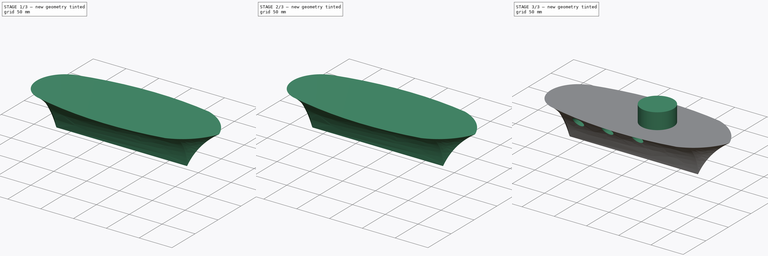
[diagram: build sequence overview — one tinted view per stage of 3, left to right]
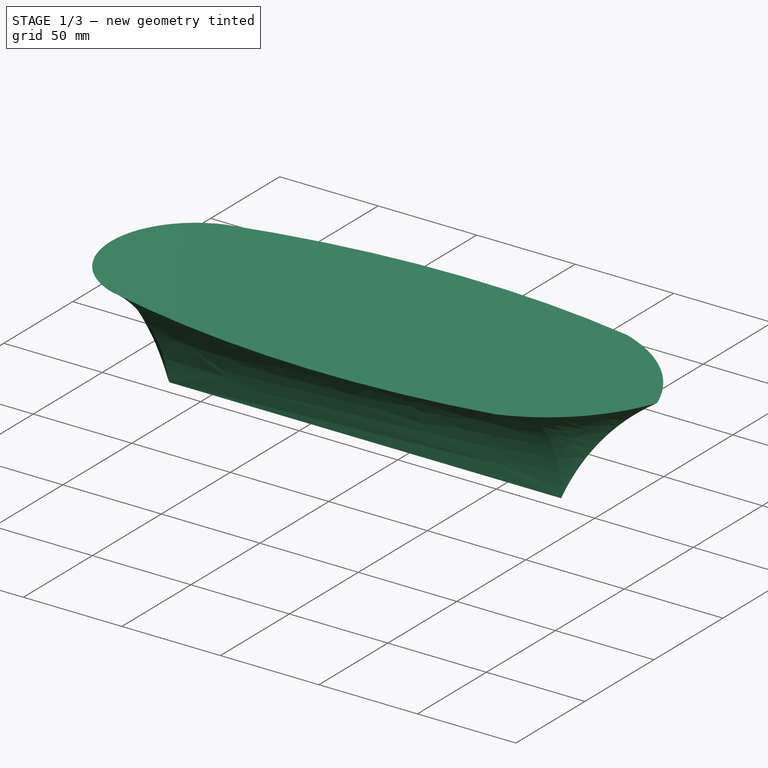
[diagram: stage 1 of 3 — iso view after this stage's code; geometry added in this stage tinted green]
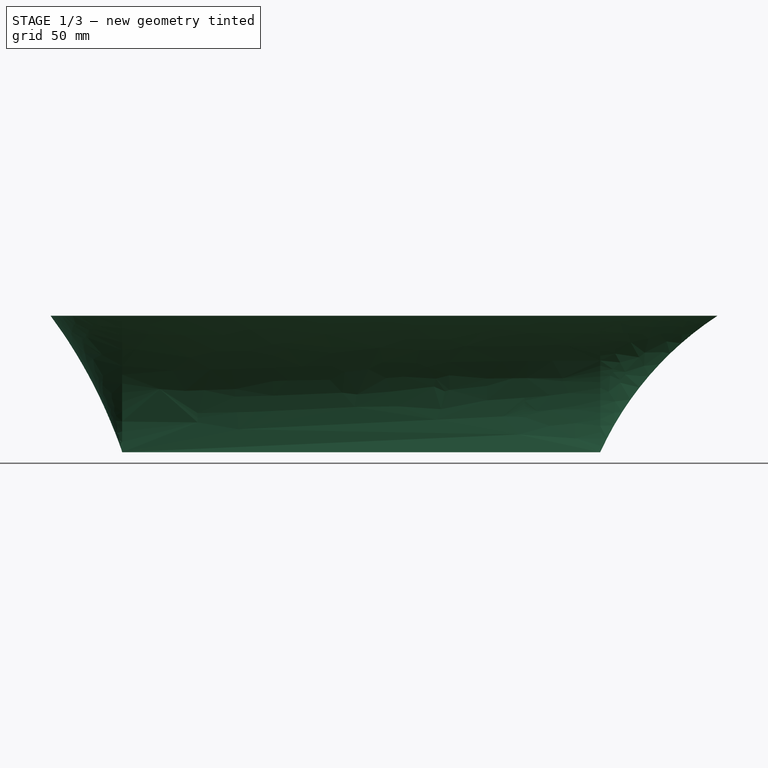
[diagram: stage 1 of 3 — front view after this stage's code; geometry added in this stage tinted green]
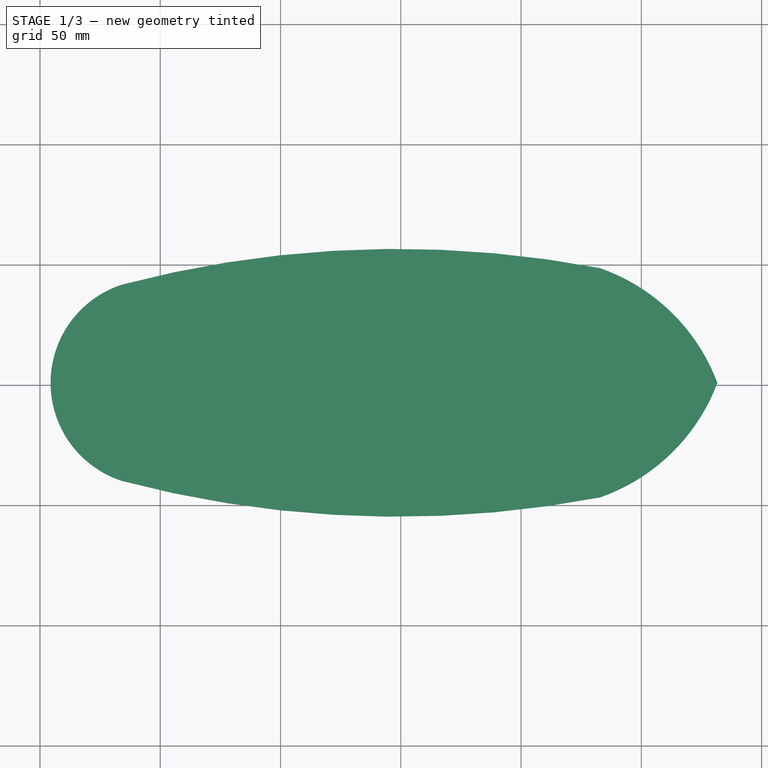
[diagram: stage 1 of 3 — top view after this stage's code; geometry added in this stage tinted green]
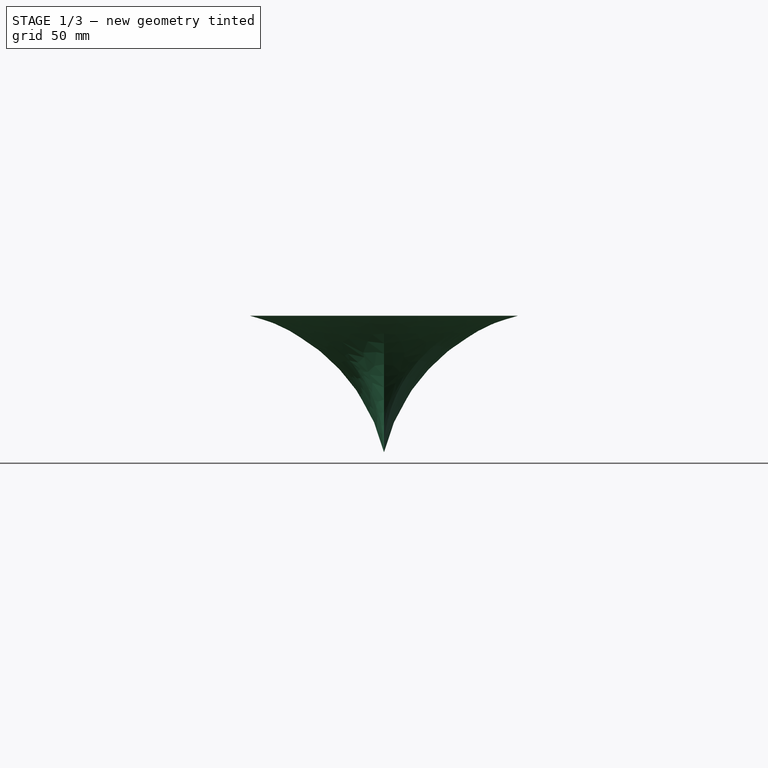
[diagram: stage 1 of 3 — right view after this stage's code; geometry added in this stage tinted green]
FCSTD DOCUMENT  (FreeCAD 0.20R29410 (Git))
Label: ShipSurfaceWB
License: All rights reserved
LicenseURL: http://en.wikipedia.org/wiki/All_rights_reserved
objects: Surface::Filling×8, Sketcher::SketchObject×7, Part::RuledSurface×4, Part::Compound×4, Part::Feature×3, Part::MultiFuse×1, PartDesign::FeatureBase×1, PartDesign::Pad×1, PartDesign::Pocket×1, PartDesign::Body×1
note: 33 computed .brp shape members not serialized (recipe doc carries the construction recipe); baked Part::Feature solids carry a one-line shape summary decoded from their .brp

FEATURE [Sketcher::SketchObject] Sketch
  FullyConstrained = false
  sketch-geometry (8):
    g0: ArcOfCircle CenterX=-52.705 CenterY=-2e-16 CenterZ=0 NormalX=0 NormalY=0 NormalZ=1 AngleXU=0 Radius=42.9169 StartAngle=1.88295 EndAngle=4.40023
    g1: ArcOfCircle CenterX=106.378 CenterY=-28.1949 CenterZ=0 NormalX=0 NormalY=0 NormalZ=1 AngleXU=0 Radius=80.3614 StartAngle=0.35848 EndAngle=1.23443
    g2: ArcOfCircle CenterX=106.378 CenterY=28.1949 CenterZ=0 NormalX=0 NormalY=0 NormalZ=1 AngleXU=0 Radius=80.3614 StartAngle=5.04876 EndAngle=5.92471
    g3: ArcOfCircle CenterX=48.4913 CenterY=-392.457 CenterZ=0 NormalX=0 NormalY=0 NormalZ=1 AngleXU=0 Radius=448.142 StartAngle=1.38131 EndAngle=1.82888
    g4: ArcOfCircle CenterX=48.4913 CenterY=392.457 CenterZ=0 NormalX=0 NormalY=0 NormalZ=1 AngleXU=0 Radius=448.142 StartAngle=4.45431 EndAngle=4.90188
    g5: LineSegment StartX=181.631 StartY=-1.07e-14 StartZ=0 EndX=132.902 EndY=0 EndZ=0
    g6: GeomPoint X=-95.6219 Y=0 Z=0
    g7: LineSegment StartX=-95.6219 StartY=0 StartZ=0 EndX=-65.8852 EndY=0 EndZ=0
  constraints (18):
    c: PointOnObject(g1,g-1)
    c: Coincident(g2,g1)
    c: Symmetric(g2,g1,g-1)
    c: Equal(g2,g1)
    c: Coincident(g3,g0)
    c: Coincident(g3,g1)
    c: Coincident(g4,g0)
    c: Coincident(g4,g2)
    c: Symmetric(g0,g0,g-1)
    c: Symmetric(g4,g3,g-1)
    c: Coincident(g5,g1)
    c: PointOnObject(g5,g-1)
    c: Vertical(g5,g1)
    c: PointOnObject(g6,g0)
    c: PointOnObject(g6,g-1)
    c: Coincident(g7,g6)
    c: PointOnObject(g7,g-1)
    c: Vertical(g7,g0)
FEATURE [Sketcher::SketchObject] Sketch001
  ExternalGeometry = -> [Sketch]
  FullyConstrained = false
  MapMode = 7
  Placement = pos=(132.902,0,0) rot=(0.57735,0.57735,0.57735;2.0944rad)
  Support = -> [Sketch]
  sketch-geometry (2):
    g0: ArcOfCircle CenterX=-57.4799 CenterY=-56.6354 CenterZ=0 NormalX=0 NormalY=0 NormalZ=1 AngleXU=0 Radius=57.48 StartAngle=6.28172 EndAngle=7.68235
    g1: ArcOfCircle CenterX=57.4799 CenterY=-56.6354 CenterZ=0 NormalX=0 NormalY=0 NormalZ=1 AngleXU=0 Radius=57.48 StartAngle=1.74243 EndAngle=3.14306
  constraints (4):
    c: Coincident(g0,g-3)
    c: Coincident(g1,g-4)
    c: Coincident(g1,g0)
    c: Symmetric(g1,g0,g-2)
FEATURE [Sketcher::SketchObject] Sketch002
  ExternalGeometry = -> [Sketch,Sketch001]
  FullyConstrained = false
  Placement = pos=(0,0,0) rot=(1,0,0;1.5708rad)
  sketch-geometry (2):
    g0: ArcOfCircle CenterX=254.978 CenterY=-112.305 CenterZ=0 NormalX=0 NormalY=0 NormalZ=1 AngleXU=0 Radius=134.136 StartAngle=2.14935 EndAngle=2.71431
    g1: LineSegment StartX=132.902 StartY=-56.7198 StartZ=0 EndX=-65.8852 EndY=-56.7198 EndZ=0
  constraints (5):
    c: Coincident(g0,g-4)
    c: Coincident(g0,g-3)
    c: Coincident(g1,g0)
    c: Horizontal(g1)
    c: Vertical(g-5,g1)
FEATURE [Sketcher::SketchObject] Sketch003
  ExternalGeometry = -> [Sketch,Sketch002]
  FullyConstrained = false
  MapMode = 7
  Placement = pos=(-65.8852,0,0) rot=(0.57735,-0.57735,-0.57735;2.0944rad)
  Support = -> [Sketch]
  sketch-geometry (2):
    g0: ArcOfCircle CenterX=-91.7934 CenterY=-79.7535 CenterZ=0 NormalX=0 NormalY=0 NormalZ=1 AngleXU=0 Radius=94.6392 StartAngle=0.245854 EndAngle=1.0023
    g1: ArcOfCircle CenterX=91.7934 CenterY=-79.7535 CenterZ=0 NormalX=0 NormalY=0 NormalZ=1 AngleXU=0 Radius=94.6392 StartAngle=2.13929 EndAngle=2.89574
  constraints (5):
    c: Coincident(g0,g-3)
    c: Coincident(g0,g-5)
    c: Coincident(g1,g-4)
    c: Coincident(g1,g0)
    c: Equal(g0,g1)
FEATURE [Sketcher::SketchObject] Sketch004
  ExternalGeometry = -> [Sketch,Sketch003]
  FullyConstrained = false
  Placement = pos=(0,0,0) rot=(1,0,0;1.5708rad)
  sketch-geometry (1):
    g0: ArcOfCircle CenterX=-261.386 CenterY=-123.061 CenterZ=0 NormalX=0 NormalY=0 NormalZ=1 AngleXU=0 Radius=206.45 StartAngle=0.327145 EndAngle=0.638609
  constraints (2):
    c: Coincident(g0,g-3)
    c: Coincident(g0,g-4)
FEATURE [Surface::Filling] Surface
  Anisotropy = false
  BoundaryEdges = -> [Sketch001,Sketch,Sketch002]
  BoundaryOrder = [0,0,0]
  Degree = 3
  Iterations = 2
  MaximumDegree = 8
  MaximumSegments = 9
  PointsOnCurve = 15
  TolAngular = 0.01
  TolCurvature = 0.1
  Tolerance2d = 1e-05
  Tolerance3d = 0.0001
FEATURE [Surface::Filling] Surface001
  Anisotropy = false
  BoundaryEdges = -> [Sketch002,Sketch,Sketch001]
  BoundaryOrder = [0,0,0]
  Degree = 3
  Iterations = 2
  MaximumDegree = 8
  MaximumSegments = 9
  PointsOnCurve = 15
  TolAngular = 0.01
  TolCurvature = 0.1
  Tolerance2d = 1e-05
  Tolerance3d = 0.0001
FEATURE [Part::RuledSurface] Ruled_Surface
  Curve1 = -> Surface001 [Edge3]
  Curve2 = -> Surface [Edge1]
  Orientation = 0
FEATURE [Surface::Filling] Surface002
  Anisotropy = false
  BoundaryEdges = -> [Surface,Ruled_Surface,Surface001]
  BoundaryOrder = [0,0,0]
  Degree = 3
  Iterations = 2
  MaximumDegree = 8
  MaximumSegments = 9
  PointsOnCurve = 15
  TolAngular = 0.01
  TolCurvature = 0.1
  Tolerance2d = 1e-05
  Tolerance3d = 0.0001
FEATURE [Part::Compound] Compound
  Links = -> [Ruled_Surface,Surface001,Surface002,Surface]
FEATURE [Part::Feature] Compound_solid  label="HullSolid"
  shape: bbox 98.14 x 108.5 x 96.88 mm, 4 faces (baked)
FEATURE [Surface::Filling] Surface003
  Anisotropy = false
  BoundaryEdges = -> [Sketch003,Sketch]
  BoundaryOrder = [0,0,0]
  Degree = 2
  Iterations = 2
  MaximumDegree = 8
  MaximumSegments = 9
  PointsOnCurve = 15
  TolAngular = 0.01
  TolCurvature = 0.1
  Tolerance2d = 1e-05
  Tolerance3d = 0.0001
  UnboundEdges = -> [Sketch004]
  UnboundOrder = [0]
FEATURE [Part::RuledSurface] Ruled_Surface001
  Curve1 = -> Surface003 [Edge1]
  Curve2 = -> Surface003 [Edge2]
  Orientation = 0
FEATURE [Surface::Filling] Surface004
  Anisotropy = false
  BoundaryEdges = -> [Ruled_Surface001,Surface003]
  BoundaryOrder = [0,0]
  Degree = 3
  Iterations = 2
  MaximumDegree = 8
  MaximumSegments = 9
  PointsOnCurve = 15
  TolAngular = 0.01
  TolCurvature = 0.1
  Tolerance2d = 1e-05
  Tolerance3d = 0.0001
FEATURE [Part::Compound] Compound001
  Links = -> [Surface003,Ruled_Surface001,Surface004]
FEATURE [Part::Feature] Compound001_solid  label="BackSolid"
  shape: bbox 204.9 x 89.85 x 100.6 mm, 3 faces (baked)
FEATURE [Surface::Filling] Surface005
  Anisotropy = false
  BoundaryEdges = -> [Sketch,Sketch003,Sketch002,Sketch001]
  BoundaryOrder = [0,0,0,0]
  Degree = 3
  Iterations = 2
  MaximumDegree = 8
  MaximumSegments = 9
  PointsOnCurve = 15
  TolAngular = 0.01
  TolCurvature = 0.1
  Tolerance2d = 1e-05
  Tolerance3d = 0.0001
FEATURE [Surface::Filling] Surface006
  Anisotropy = false
  BoundaryEdges = -> [Sketch,Sketch001,Sketch002,Sketch003]
  BoundaryOrder = [0,0,0,0]
  Degree = 3
  Iterations = 2
  MaximumDegree = 8
  MaximumSegments = 9
  PointsOnCurve = 15
  TolAngular = 0.01
  TolCurvature = 0.1
  Tolerance2d = 1e-05
  Tolerance3d = 0.0001
FEATURE [Part::RuledSurface] Ruled_Surface002
  Curve1 = -> Sketch003 [Edge1]
  Curve2 = -> Sketch003 [Edge2]
  Orientation = 0
FEATURE [Part::RuledSurface] Ruled_Surface003
  Curve1 = -> Surface006 [Edge1]
  Curve2 = -> Surface005 [Edge1]
  Orientation = 0
FEATURE [Surface::Filling] Surface007
  Anisotropy = false
  BoundaryEdges = -> [Sketch001,Ruled_Surface003,Surface005]
  BoundaryOrder = [0,0,0]
  Degree = 3
  Iterations = 2
  MaximumDegree = 8
  MaximumSegments = 9
  PointsOnCurve = 15
  TolAngular = 0.01
  TolCurvature = 0.1
  Tolerance2d = 1e-05
  Tolerance3d = 0.0001
FEATURE [Part::Compound] Compound002
  Links = -> [Ruled_Surface003,Surface007,Surface005,Surface006,Ruled_Surface002]
FEATURE [Part::Feature] Compound002_solid  label="BodySolid"
  shape: bbox 221.1 x 124.6 x 71.96 mm, 5 faces (baked)
FEATURE [Part::Compound] Compound003
  Links = -> [Compound_solid,Compound001_solid,Compound002_solid]
FEATURE [Part::MultiFuse] Fusion
  Shapes = -> [Compound003]
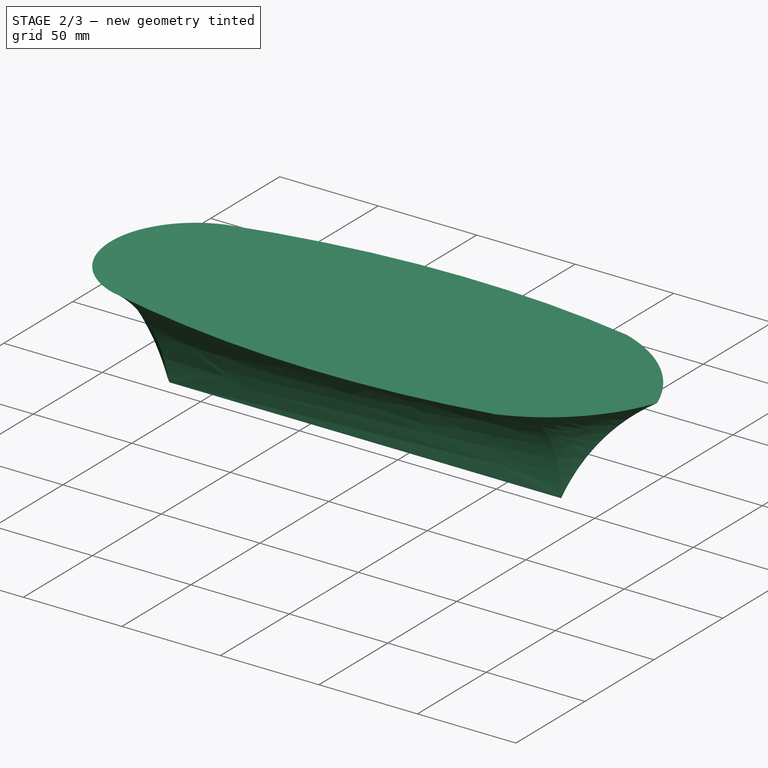
[diagram: stage 2 of 3 — iso view after this stage's code; geometry added in this stage tinted green]
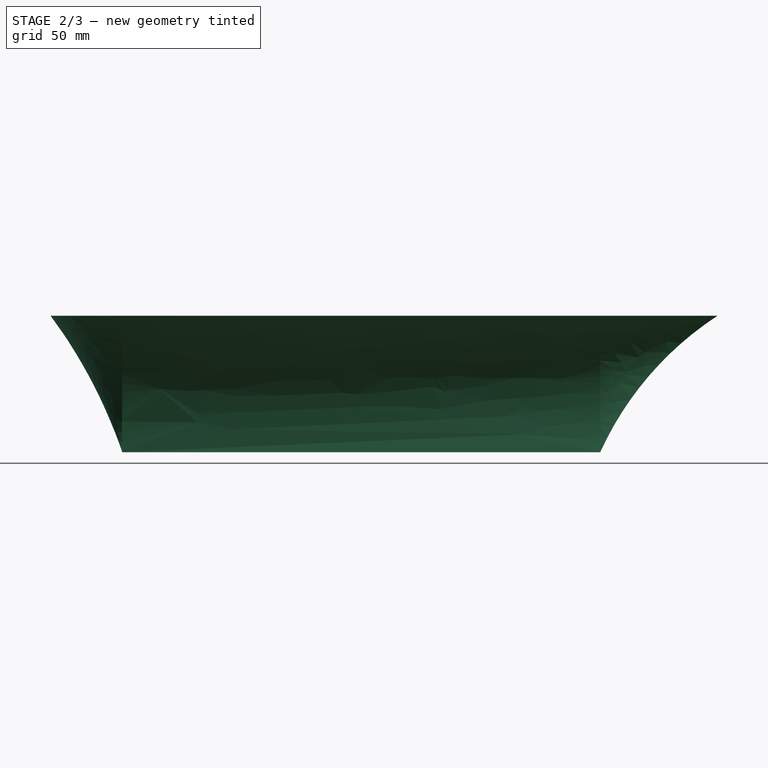
[diagram: stage 2 of 3 — front view after this stage's code; geometry added in this stage tinted green]
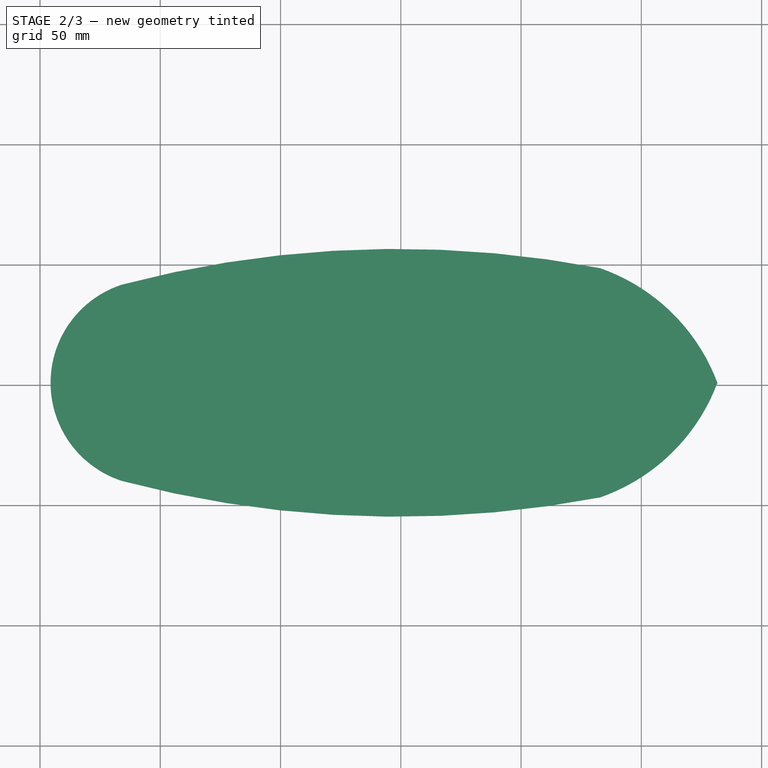
[diagram: stage 2 of 3 — top view after this stage's code; geometry added in this stage tinted green]
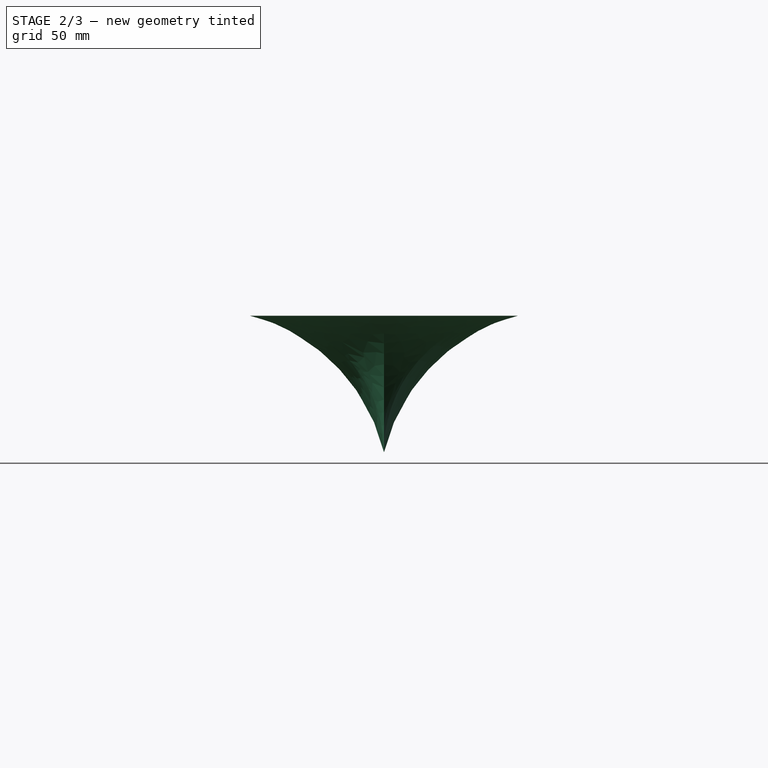
[diagram: stage 2 of 3 — right view after this stage's code; geometry added in this stage tinted green]
FEATURE [PartDesign::FeatureBase] BaseFeature
  BaseFeature = -> Fusion
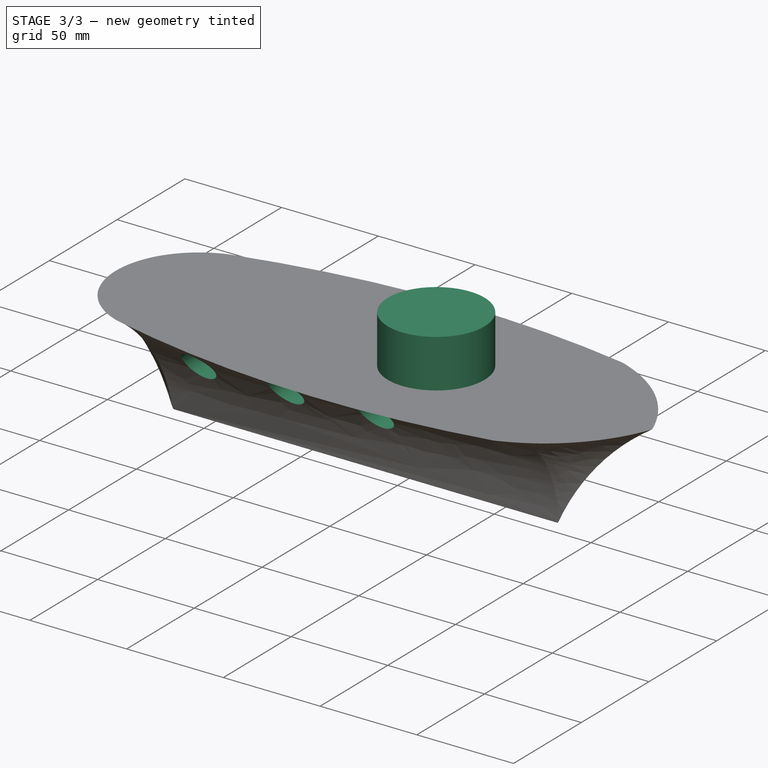
[diagram: stage 3 of 3 — iso view after this stage's code; geometry added in this stage tinted green]
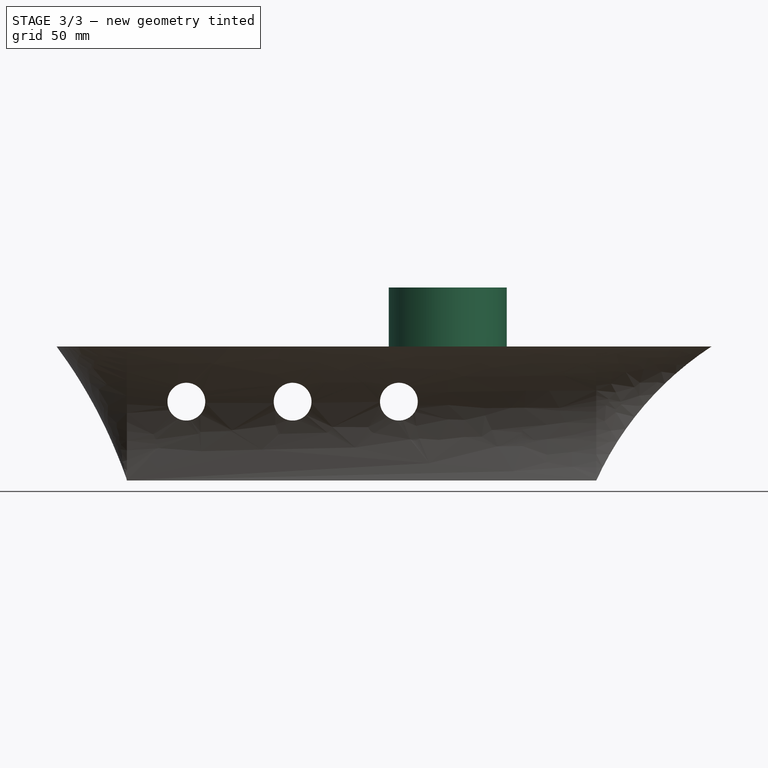
[diagram: stage 3 of 3 — front view after this stage's code; geometry added in this stage tinted green]
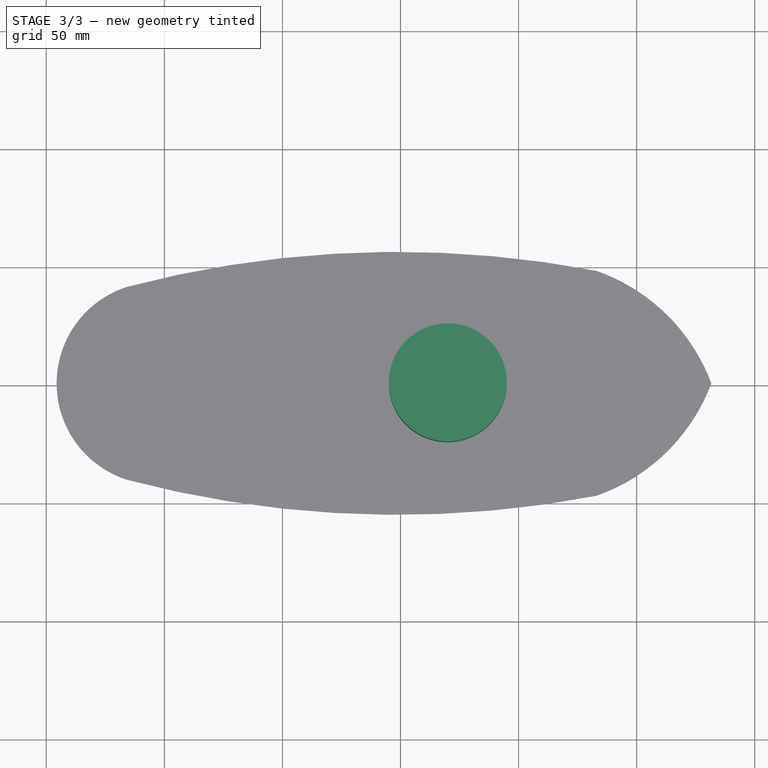
[diagram: stage 3 of 3 — top view after this stage's code; geometry added in this stage tinted green]
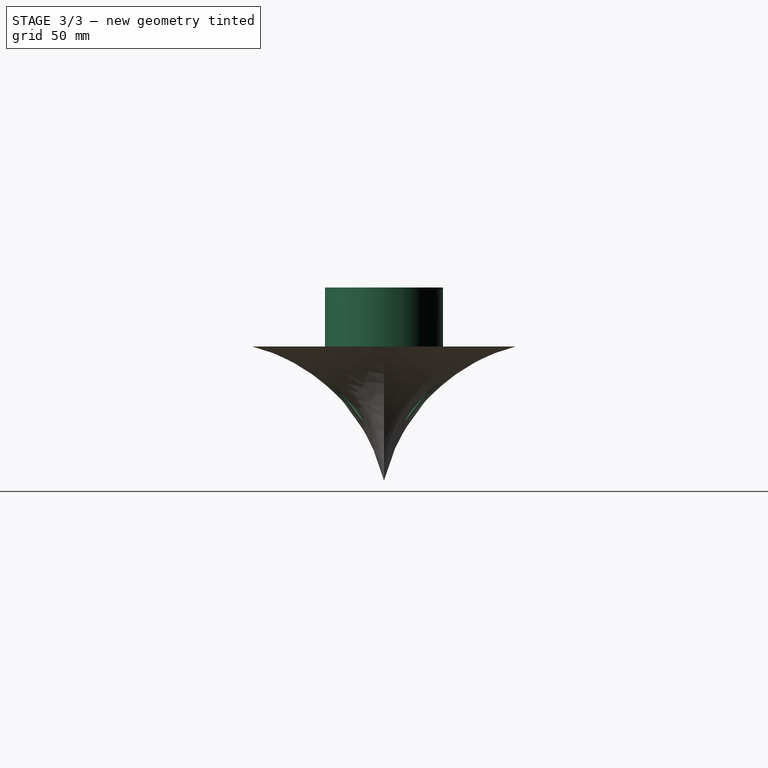
[diagram: stage 3 of 3 — right view after this stage's code; geometry added in this stage tinted green]
FEATURE [Sketcher::SketchObject] Sketch005
  AttachmentOffset = pos=(70,0,0) rot=(0,0,1;0rad)
  FullyConstrained = true
  MapMode = 5
  Placement = pos=(70,0,0) rot=(0,0,1;0rad)
  Support = -> [BaseFeature]
  sketch-geometry (1):
    g0: Circle CenterX=0 CenterY=0 CenterZ=0 NormalX=0 NormalY=0 NormalZ=1 AngleXU=0 Radius=25
  constraints (2):
    c: Coincident(g0,g-1)
    c: Diameter(g0) = 50
FEATURE [PartDesign::Pad] Pad
  BaseFeature = -> BaseFeature
  Direction = (0,0,1)
  Length = 25
  Length2 = 10
  Profile = -> Sketch005
  ReferenceAxis = -> Sketch005 [N_Axis]
  Type = 0
FEATURE [Sketcher::SketchObject] Sketch006
  FullyConstrained = false
  MapMode = 5
  Placement = pos=(0,0,0) rot=(1,0,0;1.5708rad)
  Support = -> [XZ_Plane]
  sketch-geometry (5):
    g0: Circle CenterX=-40.6887 CenterY=-23.3418 CenterZ=0 NormalX=0 NormalY=0 NormalZ=1 AngleXU=0 Radius=8
    g1: Circle CenterX=4.31128 CenterY=-23.3418 CenterZ=0 NormalX=0 NormalY=0 NormalZ=1 AngleXU=0 Radius=8
    g2: Circle CenterX=49.3113 CenterY=-23.3418 CenterZ=0 NormalX=0 NormalY=0 NormalZ=1 AngleXU=0 Radius=8
    g3: LineSegment StartX=-40.6887 StartY=-23.3418 StartZ=0 EndX=4.31128 EndY=-23.3418 EndZ=0
    g4: LineSegment StartX=4.31128 StartY=-23.3418 StartZ=0 EndX=49.3113 EndY=-23.3418 EndZ=0
  constraints (11):
    c: Diameter(g0) = 16
    c: Equal(g0,g1)
    c: Equal(g1,g2)
    c: Horizontal(g0,g1)
    c: Horizontal(g1,g2)
    c: Coincident(g3,g0)
    c: Coincident(g3,g1)
    c: Coincident(g4,g1)
    c: Coincident(g4,g2)
    c: DistanceX(g3,g3) = 45
    c: Equal(g3,g4)
FEATURE [PartDesign::Pocket] Pocket
  BaseFeature = -> Pad
  Direction = (0,1,-2e-16)
  Length = 5
  Length2 = 5
  Midplane = true
  Profile = -> Sketch006
  ReferenceAxis = -> Sketch006 [N_Axis]
  Type = 1
FEATURE [PartDesign::Body] Body
  BaseFeature = -> Fusion
  Group = -> [BaseFeature,Sketch005,Pad,Sketch006,Pocket]
  Origin = -> Origin
  Tip = -> Pocket
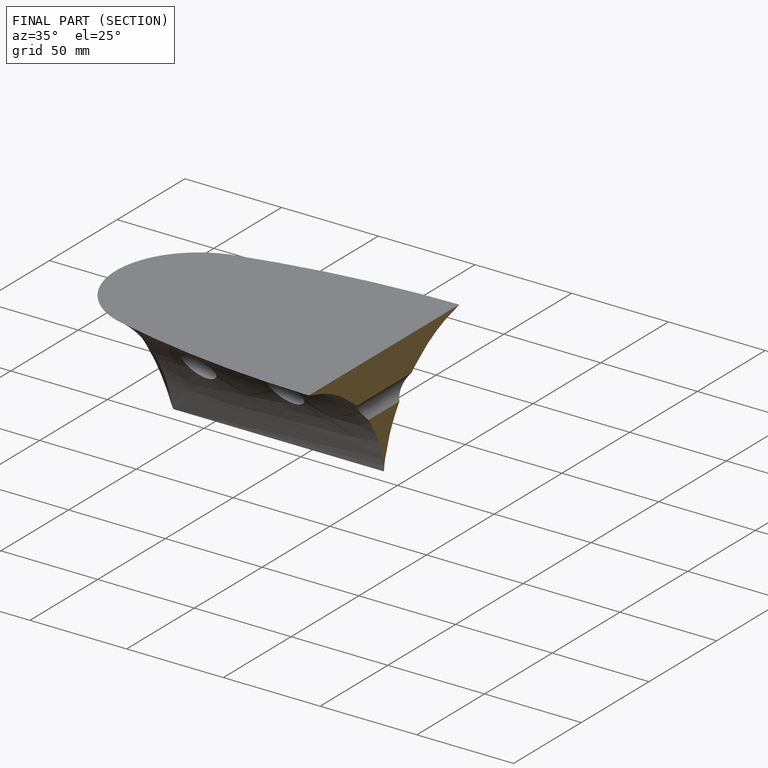
[diagram: finished part — half-section view (interior)]
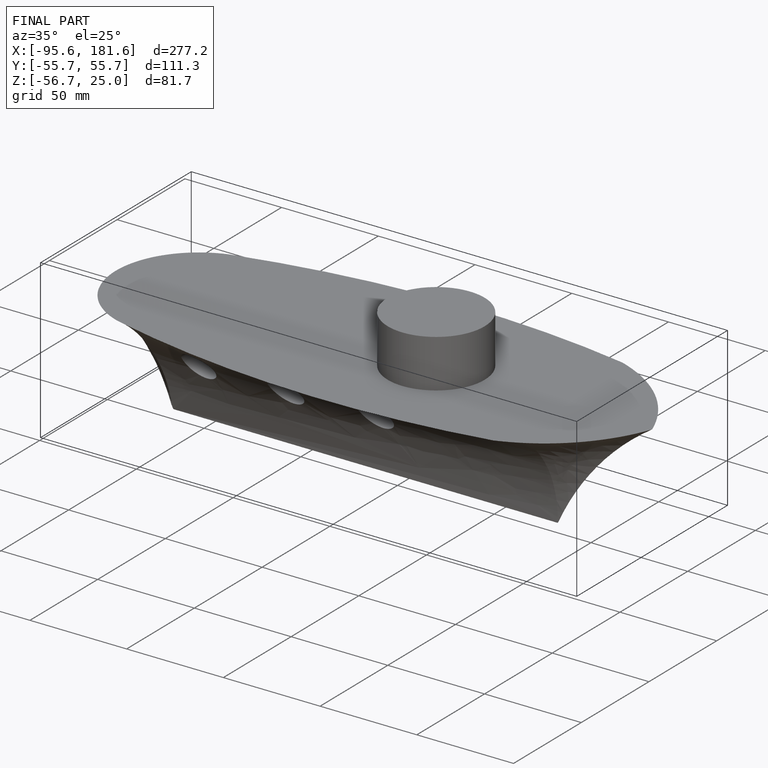
[diagram: finished part — iso view with bounding-box wireframe]
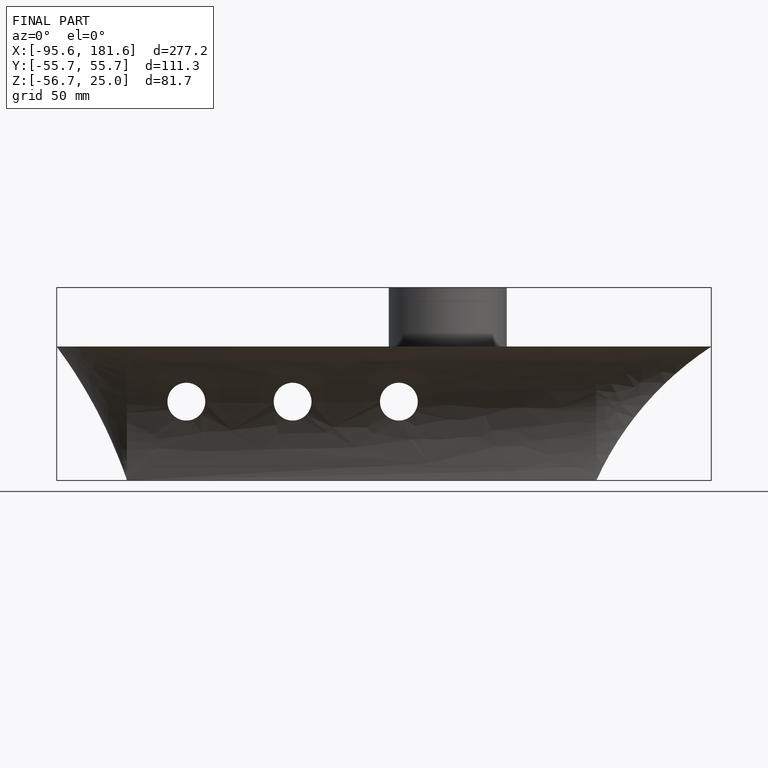
[diagram: finished part — front view with bounding-box wireframe]
